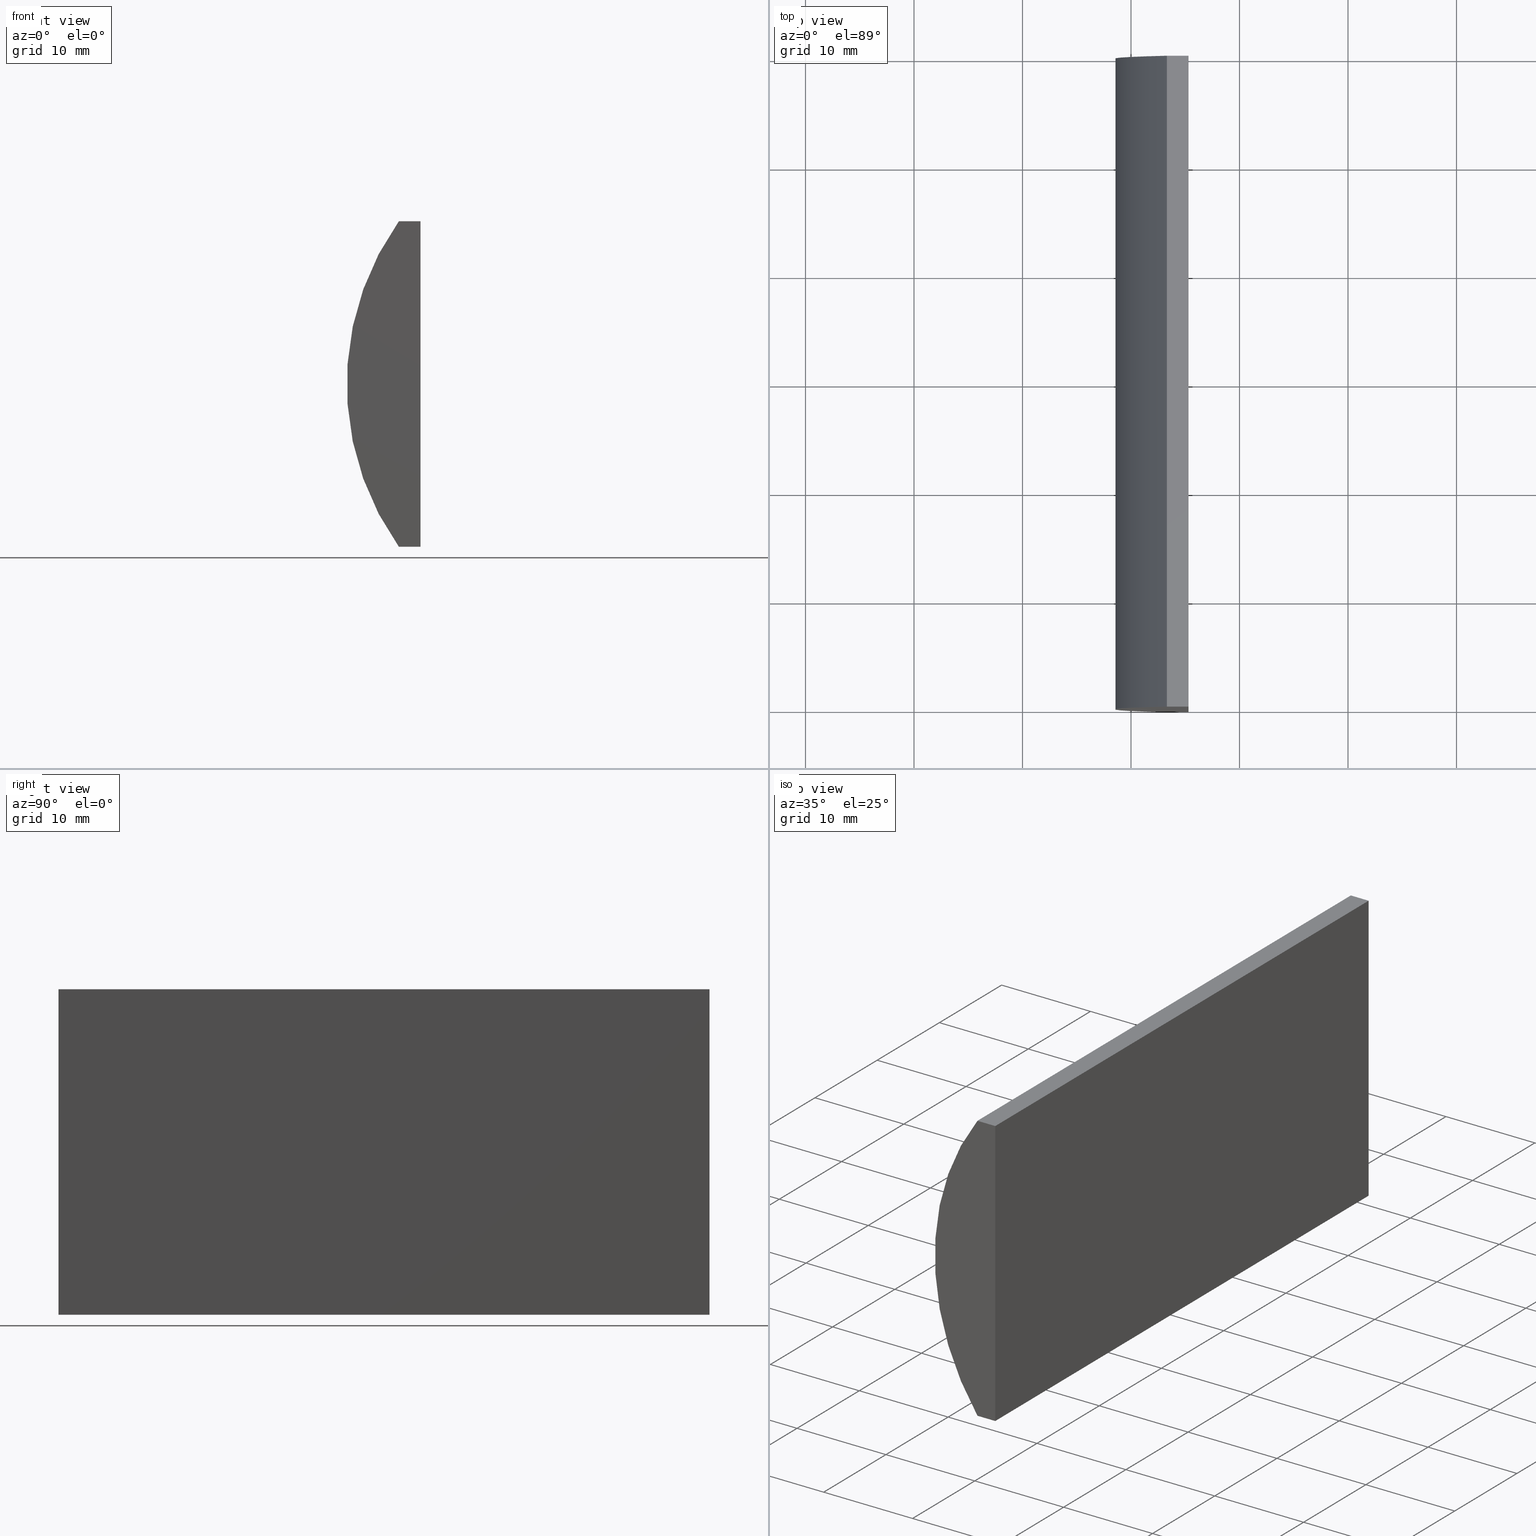
[diagram: canonical four-view strip — front | top / right | iso, engineering-drawing reading convention]
A machine part, canonical four-view strip (front | top / right | iso — engineering-drawing reading convention). The complete STEP part file that produces these views, byte-faithful:
ISO-10303-21;
HEADER;
FILE_DESCRIPTION (( 'STEP AP214' ),
    '1' );
FILE_NAME ('155058.STEP',
    '2019-06-18T07:33:01',
    ( 'user' ),
    ( '΢���й�' ),
    'SwSTEP 2.0',
    'SolidWorks 2016',
    '' );
FILE_SCHEMA (( 'AUTOMOTIVE_DESIGN' ));
ENDSEC;

DATA;
#1 = PLANE ( 'NONE',  #10 ) ;
#2 =( NAMED_UNIT ( * ) PLANE_ANGLE_UNIT ( ) SI_UNIT ( $, .RADIAN. ) );
#3 =( NAMED_UNIT ( * ) PLANE_ANGLE_UNIT ( ) SI_UNIT ( $, .RADIAN. ) );
#4 = ORIENTED_EDGE ( 'NONE', *, *, #66, .T. ) ;
#5 = EDGE_LOOP ( 'NONE', ( #51, #196, #179, #7 ) ) ;
#6 = DIRECTION ( 'NONE',  ( -1.000000000000000000, -0.0000000000000000000, -0.0000000000000000000 ) ) ;
#7 = ORIENTED_EDGE ( 'NONE', *, *, #157, .F. ) ;
#8 = DIRECTION ( 'NONE',  ( -0.0000000000000000000, -1.000000000000000000, -0.0000000000000000000 ) ) ;
#9 = DIRECTION ( 'NONE',  ( -0.0000000000000000000, -1.000000000000000000, -0.0000000000000000000 ) ) ;
#10 = AXIS2_PLACEMENT_3D ( 'NONE', #141, #197, #119 ) ;
#11 = FACE_OUTER_BOUND ( 'NONE', #79, .T. ) ;
#12 = UNCERTAINTY_MEASURE_WITH_UNIT (LENGTH_MEASURE( 1.000000000000000100E-005 ), #25, 'distance_accuracy_value', 'NONE');
#13 = DIRECTION ( 'NONE',  ( -2.891205793294678800E-016, -0.0000000000000000000, -1.000000000000000000 ) ) ;
#14 = EDGE_CURVE ( 'NONE', #170, #146, #80, .T. ) ;
#15 = DIRECTION ( 'NONE',  ( -2.891205793294678800E-016, -0.0000000000000000000, -1.000000000000000000 ) ) ;
#16 = LINE ( 'NONE', #46, #62 ) ;
#17 = AXIS2_PLACEMENT_3D ( 'NONE', #182, #78, #48 ) ;
#18 = MECHANICAL_DESIGN_GEOMETRIC_PRESENTATION_REPRESENTATION (  '', ( #166 ), #115 ) ;
#19 = ORIENTED_EDGE ( 'NONE', *, *, #169, .T. ) ;
#20 = EDGE_CURVE ( 'NONE', #170, #65, #34, .T. ) ;
#21 = DIRECTION ( 'NONE',  ( -1.000000000000000000, -0.0000000000000000000, -0.0000000000000000000 ) ) ;
#22 = VECTOR ( 'NONE', #6, 1000.000000000000000 ) ;
#23 = CARTESIAN_POINT ( 'NONE',  ( 4.355204334851265500, 60.00000000000000000, 4.286263797015675000E-017 ) ) ;
#24 = PRESENTATION_LAYER_ASSIGNMENT (  '', '', ( #166 ) ) ;
#25 =( LENGTH_UNIT ( ) NAMED_UNIT ( * ) SI_UNIT ( .MILLI., .METRE. ) );
#26 = FACE_OUTER_BOUND ( 'NONE', #5, .T. ) ;
#27 = CARTESIAN_POINT ( 'NONE',  ( -14.69479566514873300, 60.00000000000000000, 15.00000000000000000 ) ) ;
#28 = ORIENTED_EDGE ( 'NONE', *, *, #169, .F. ) ;
#29 = DIRECTION ( 'NONE',  ( 0.0000000000000000000, 0.0000000000000000000, -1.000000000000000000 ) ) ;
#30 = DIRECTION ( 'NONE',  ( 1.000000000000000000, 0.0000000000000000000, 0.0000000000000000000 ) ) ;
#31 = LINE ( 'NONE', #129, #64 ) ;
#32 = PRODUCT_DEFINITION_CONTEXT ( 'detailed design', #63, 'design' ) ;
#33 = UNCERTAINTY_MEASURE_WITH_UNIT (LENGTH_MEASURE( 1.000000000000000100E-005 ), #155, 'distance_accuracy_value', 'NONE');
#34 = CIRCLE ( 'NONE', #148, 25.84999999999999800 ) ;
#35 = DIRECTION ( 'NONE',  ( 0.0000000000000000000, 0.0000000000000000000, -1.000000000000000000 ) ) ;
#36 = ORIENTED_EDGE ( 'NONE', *, *, #106, .T. ) ;
#37 = PRODUCT ( '155058', '155058', '', ( #87 ) ) ;
#38 = CARTESIAN_POINT ( 'NONE',  ( -14.69479566514874200, 60.00000000000000000, -15.00000000000000000 ) ) ;
#39 = DIRECTION ( 'NONE',  ( 1.000000000000000000, 0.0000000000000000000, -0.0000000000000000000 ) ) ;
#40 = CARTESIAN_POINT ( 'NONE',  ( -16.69764582848766200, 60.00000000000000000, -15.00000000000000000 ) ) ;
#41 = VECTOR ( 'NONE', #13, 1000.000000000000000 ) ;
#42 = CARTESIAN_POINT ( 'NONE',  ( -14.69479566514874200, 60.00000000000000000, -15.00000000000000000 ) ) ;
#43 = ADVANCED_BREP_SHAPE_REPRESENTATION ( '155058', ( #198, #85 ), #204 ) ;
#44 = ORIENTED_EDGE ( 'NONE', *, *, #164, .T. ) ;
#45 = LINE ( 'NONE', #42, #175 ) ;
#46 = CARTESIAN_POINT ( 'NONE',  ( -14.69479566514873300, 60.00000000000000000, 15.00000000000000000 ) ) ;
#47 = EDGE_CURVE ( 'NONE', #145, #95, #45, .T. ) ;
#48 = DIRECTION ( 'NONE',  ( 0.0000000000000000000, -0.0000000000000000000, 1.000000000000000000 ) ) ;
#49 = EDGE_LOOP ( 'NONE', ( #4, #104, #28, #56 ) ) ;
#50 = AXIS2_PLACEMENT_3D ( 'NONE', #128, #35, #109 ) ;
#51 = ORIENTED_EDGE ( 'NONE', *, *, #116, .F. ) ;
#52 = ORIENTED_EDGE ( 'NONE', *, *, #174, .T. ) ;
#53 = PRESENTATION_STYLE_ASSIGNMENT (( #75 ) ) ;
#54 = DIRECTION ( 'NONE',  ( 0.0000000000000000000, 1.000000000000000000, 0.0000000000000000000 ) ) ;
#55 =( NAMED_UNIT ( * ) SI_UNIT ( $, .STERADIAN. ) SOLID_ANGLE_UNIT ( ) );
#56 = ORIENTED_EDGE ( 'NONE', *, *, #47, .T. ) ;
#57 = LINE ( 'NONE', #105, #22 ) ;
#58 = SURFACE_STYLE_FILL_AREA ( #152 ) ;
#59 = LINE ( 'NONE', #194, #147 ) ;
#60 = AXIS2_PLACEMENT_3D ( 'NONE', #23, #9, #29 ) ;
#61 = DIRECTION ( 'NONE',  ( 0.0000000000000000000, 0.0000000000000000000, 1.000000000000000000 ) ) ;
#62 = VECTOR ( 'NONE', #123, 1000.000000000000000 ) ;
#63 = APPLICATION_CONTEXT ( 'automotive_design' ) ;
#64 = VECTOR ( 'NONE', #30, 1000.000000000000000 ) ;
#65 = VERTEX_POINT ( 'NONE', #73 ) ;
#66 = EDGE_CURVE ( 'NONE', #95, #146, #57, .T. ) ;
#67 = APPLICATION_PROTOCOL_DEFINITION ( 'draft international standard', 'automotive_design', 1998, #63 ) ;
#68 = ORIENTED_EDGE ( 'NONE', *, *, #47, .F. ) ;
#69 = DIRECTION ( 'NONE',  ( 0.0000000000000000000, 1.000000000000000000, 0.0000000000000000000 ) ) ;
#70 = DIRECTION ( 'NONE',  ( -0.0000000000000000000, -1.000000000000000000, -0.0000000000000000000 ) ) ;
#71 = PRODUCT_DEFINITION_SHAPE ( 'NONE', 'NONE',  #91 ) ;
#72 = FACE_OUTER_BOUND ( 'NONE', #176, .T. ) ;
#73 = CARTESIAN_POINT ( 'NONE',  ( -16.69764582848766200, 60.00000000000000000, 15.00000000000000000 ) ) ;
#74 = FILL_AREA_STYLE_COLOUR ( '', #171 ) ;
#75 = SURFACE_STYLE_USAGE ( .BOTH. , #135 ) ;
#76 = CARTESIAN_POINT ( 'NONE',  ( 4.355204334851265500, 0.0000000000000000000, 4.286263797015675000E-017 ) ) ;
#77 = CARTESIAN_POINT ( 'NONE',  ( 4.355204334851265500, 60.00000000000000000, 4.286263797015675000E-017 ) ) ;
#78 = DIRECTION ( 'NONE',  ( 0.0000000000000000000, 1.000000000000000000, 0.0000000000000000000 ) ) ;
#79 = EDGE_LOOP ( 'NONE', ( #89, #202, #161, #133 ) ) ;
#80 = LINE ( 'NONE', #40, #120 ) ;
#81 = FACE_OUTER_BOUND ( 'NONE', #49, .T. ) ;
#82 = MECHANICAL_DESIGN_GEOMETRIC_PRESENTATION_REPRESENTATION (  '', ( #130 ), #200 ) ;
#83 = DIRECTION ( 'NONE',  ( 1.000000000000000000, 0.0000000000000000000, 0.0000000000000000000 ) ) ;
#84 = CARTESIAN_POINT ( 'NONE',  ( -14.69479566514874200, 0.0000000000000000000, -15.00000000000000000 ) ) ;
#85 = AXIS2_PLACEMENT_3D ( 'NONE', #127, #90, #181 ) ;
#86 = CARTESIAN_POINT ( 'NONE',  ( -16.69764582848766200, 0.0000000000000000000, -15.00000000000000000 ) ) ;
#87 = PRODUCT_CONTEXT ( 'NONE', #93, 'mechanical' ) ;
#88 = PLANE ( 'NONE',  #189 ) ;
#89 = ORIENTED_EDGE ( 'NONE', *, *, #116, .T. ) ;
#90 = DIRECTION ( 'NONE',  ( 0.0000000000000000000, 0.0000000000000000000, 1.000000000000000000 ) ) ;
#91 = PRODUCT_DEFINITION ( 'δ֪', '', #108, #32 ) ;
#92 = ORIENTED_EDGE ( 'NONE', *, *, #174, .F. ) ;
#93 = APPLICATION_CONTEXT ( 'automotive_design' ) ;
#94 = EDGE_LOOP ( 'NONE', ( #44, #68, #92, #110 ) ) ;
#95 = VERTEX_POINT ( 'NONE', #84 ) ;
#96 = SHAPE_DEFINITION_REPRESENTATION ( #71, #43 ) ;
#97 = VECTOR ( 'NONE', #83, 1000.000000000000000 ) ;
#98 = EDGE_CURVE ( 'NONE', #65, #168, #124, .T. ) ;
#99 = VECTOR ( 'NONE', #15, 1000.000000000000000 ) ;
#100 = CARTESIAN_POINT ( 'NONE',  ( -16.69764582848766200, 60.00000000000000000, 15.00000000000000000 ) ) ;
#101 = CLOSED_SHELL ( 'NONE', ( #114, #190, #178, #191, #107, #144 ) ) ;
#102 = SURFACE_STYLE_USAGE ( .BOTH. , #162 ) ;
#103 = APPLICATION_PROTOCOL_DEFINITION ( 'draft international standard', 'automotive_design', 1998, #93 ) ;
#104 = ORIENTED_EDGE ( 'NONE', *, *, #14, .F. ) ;
#105 = CARTESIAN_POINT ( 'NONE',  ( -16.69764582848766200, 0.0000000000000000000, -15.00000000000000000 ) ) ;
#106 = EDGE_CURVE ( 'NONE', #65, #199, #185, .T. ) ;
#107 = ADVANCED_FACE ( 'NONE', ( #180 ), #134, .T. ) ;
#108 = PRODUCT_DEFINITION_FORMATION_WITH_SPECIFIED_SOURCE ( '�κ�', '', #37, .NOT_KNOWN. ) ;
#109 = DIRECTION ( 'NONE',  ( -1.000000000000000000, 0.0000000000000000000, -0.0000000000000000000 ) ) ;
#110 = ORIENTED_EDGE ( 'NONE', *, *, #142, .T. ) ;
#111 = PRESENTATION_STYLE_ASSIGNMENT (( #102 ) ) ;
#112 = LINE ( 'NONE', #160, #41 ) ;
#113 = ORIENTED_EDGE ( 'NONE', *, *, #157, .T. ) ;
#114 = ADVANCED_FACE ( 'NONE', ( #11 ), #149, .T. ) ;
#115 =( GEOMETRIC_REPRESENTATION_CONTEXT ( 3 ) GLOBAL_UNCERTAINTY_ASSIGNED_CONTEXT ( ( #151 ) ) GLOBAL_UNIT_ASSIGNED_CONTEXT ( ( #159, #2, #55 ) ) REPRESENTATION_CONTEXT ( 'NONE', 'WORKASPACE' ) );
#116 = EDGE_CURVE ( 'NONE', #146, #168, #143, .T. ) ;
#117 = FILL_AREA_STYLE_COLOUR ( '', #139 ) ;
#118 = AXIS2_PLACEMENT_3D ( 'NONE', #76, #69, #192 ) ;
#119 = DIRECTION ( 'NONE',  ( 2.891205793294678800E-016, 0.0000000000000000000, 1.000000000000000000 ) ) ;
#120 = VECTOR ( 'NONE', #187, 1000.000000000000000 ) ;
#121 = PLANE ( 'NONE',  #17 ) ;
#122 = FILL_AREA_STYLE ('',( #74 ) ) ;
#123 = DIRECTION ( 'NONE',  ( -0.0000000000000000000, -1.000000000000000000, -0.0000000000000000000 ) ) ;
#124 = LINE ( 'NONE', #158, #203 ) ;
#125 = PLANE ( 'NONE',  #50 ) ;
#126 = PRODUCT_RELATED_PRODUCT_CATEGORY ( 'part', '', ( #37 ) ) ;
#127 = CARTESIAN_POINT ( 'NONE',  ( 0.0000000000000000000, 0.0000000000000000000, 0.0000000000000000000 ) ) ;
#128 = CARTESIAN_POINT ( 'NONE',  ( -16.69764582848766200, 60.00000000000000000, 15.00000000000000000 ) ) ;
#129 = CARTESIAN_POINT ( 'NONE',  ( -16.69764582848766200, 0.0000000000000000000, 15.00000000000000000 ) ) ;
#130 = STYLED_ITEM ( 'NONE', ( #53 ), #198 ) ;
#131 = ORIENTED_EDGE ( 'NONE', *, *, #20, .T. ) ;
#132 = DIRECTION ( 'NONE',  ( 0.0000000000000000000, 0.0000000000000000000, 1.000000000000000000 ) ) ;
#133 = ORIENTED_EDGE ( 'NONE', *, *, #14, .T. ) ;
#134 = PLANE ( 'NONE',  #177 ) ;
#135 = SURFACE_SIDE_STYLE ('',( #172 ) ) ;
#136 = PRESENTATION_LAYER_ASSIGNMENT (  '', '', ( #130 ) ) ;
#137 = CARTESIAN_POINT ( 'NONE',  ( -16.69764582848766200, 60.00000000000000000, -15.00000000000000000 ) ) ;
#138 = ORIENTED_EDGE ( 'NONE', *, *, #106, .F. ) ;
#139 = COLOUR_RGB ( '',1.000000000000000000, 1.000000000000000000, 1.000000000000000000 ) ;
#140 = EDGE_LOOP ( 'NONE', ( #131, #36, #52, #19 ) ) ;
#141 = CARTESIAN_POINT ( 'NONE',  ( -14.69479566514874200, 60.00000000000000000, -15.00000000000000000 ) ) ;
#142 = EDGE_CURVE ( 'NONE', #199, #186, #16, .T. ) ;
#143 = CIRCLE ( 'NONE', #118, 25.84999999999999800 ) ;
#144 = ADVANCED_FACE ( 'NONE', ( #26 ), #121, .F. ) ;
#145 = VERTEX_POINT ( 'NONE', #153 ) ;
#146 = VERTEX_POINT ( 'NONE', #86 ) ;
#147 = VECTOR ( 'NONE', #21, 1000.000000000000000 ) ;
#148 = AXIS2_PLACEMENT_3D ( 'NONE', #154, #167, #132 ) ;
#149 = CYLINDRICAL_SURFACE ( 'NONE', #60, 25.84999999999999800 ) ;
#150 = ORIENTED_EDGE ( 'NONE', *, *, #142, .F. ) ;
#151 = UNCERTAINTY_MEASURE_WITH_UNIT (LENGTH_MEASURE( 1.000000000000000100E-005 ), #159, 'distance_accuracy_value', 'NONE');
#152 = FILL_AREA_STYLE ('',( #117 ) ) ;
#153 = CARTESIAN_POINT ( 'NONE',  ( -14.69479566514874200, 60.00000000000000000, -15.00000000000000000 ) ) ;
#154 = CARTESIAN_POINT ( 'NONE',  ( 4.355204334851265500, 60.00000000000000000, 4.286263797015675000E-017 ) ) ;
#155 =( LENGTH_UNIT ( ) NAMED_UNIT ( * ) SI_UNIT ( .MILLI., .METRE. ) );
#156 = FACE_OUTER_BOUND ( 'NONE', #94, .T. ) ;
#157 = EDGE_CURVE ( 'NONE', #168, #186, #31, .T. ) ;
#158 = CARTESIAN_POINT ( 'NONE',  ( -16.69764582848766200, 60.00000000000000000, 15.00000000000000000 ) ) ;
#159 =( LENGTH_UNIT ( ) NAMED_UNIT ( * ) SI_UNIT ( .MILLI., .METRE. ) );
#160 = CARTESIAN_POINT ( 'NONE',  ( -14.69479566514874200, 0.0000000000000000000, -15.00000000000000000 ) ) ;
#161 = ORIENTED_EDGE ( 'NONE', *, *, #20, .F. ) ;
#162 = SURFACE_SIDE_STYLE ('',( #58 ) ) ;
#163 = CARTESIAN_POINT ( 'NONE',  ( -16.69764582848766200, 0.0000000000000000000, 15.00000000000000000 ) ) ;
#164 = EDGE_CURVE ( 'NONE', #186, #95, #112, .T. ) ;
#165 = ORIENTED_EDGE ( 'NONE', *, *, #98, .T. ) ;
#166 = STYLED_ITEM ( 'NONE', ( #111 ), #43 ) ;
#167 = DIRECTION ( 'NONE',  ( 0.0000000000000000000, 1.000000000000000000, 0.0000000000000000000 ) ) ;
#168 = VERTEX_POINT ( 'NONE', #163 ) ;
#169 = EDGE_CURVE ( 'NONE', #145, #170, #59, .T. ) ;
#170 = VERTEX_POINT ( 'NONE', #137 ) ;
#171 = COLOUR_RGB ( '',1.000000000000000000, 1.000000000000000000, 1.000000000000000000 ) ;
#172 = SURFACE_STYLE_FILL_AREA ( #122 ) ;
#173 =( NAMED_UNIT ( * ) SI_UNIT ( $, .STERADIAN. ) SOLID_ANGLE_UNIT ( ) );
#174 = EDGE_CURVE ( 'NONE', #199, #145, #201, .T. ) ;
#175 = VECTOR ( 'NONE', #8, 1000.000000000000000 ) ;
#176 = EDGE_LOOP ( 'NONE', ( #113, #150, #138, #165 ) ) ;
#177 = AXIS2_PLACEMENT_3D ( 'NONE', #77, #54, #195 ) ;
#178 = ADVANCED_FACE ( 'NONE', ( #156 ), #1, .F. ) ;
#179 = ORIENTED_EDGE ( 'NONE', *, *, #164, .F. ) ;
#180 = FACE_OUTER_BOUND ( 'NONE', #140, .T. ) ;
#181 = DIRECTION ( 'NONE',  ( 1.000000000000000000, 0.0000000000000000000, 0.0000000000000000000 ) ) ;
#182 = CARTESIAN_POINT ( 'NONE',  ( 4.355204334851265500, 0.0000000000000000000, 4.286263797015675000E-017 ) ) ;
#183 =( NAMED_UNIT ( * ) PLANE_ANGLE_UNIT ( ) SI_UNIT ( $, .RADIAN. ) );
#184 = CARTESIAN_POINT ( 'NONE',  ( -14.69479566514873300, 0.0000000000000000000, 15.00000000000000000 ) ) ;
#185 = LINE ( 'NONE', #100, #97 ) ;
#186 = VERTEX_POINT ( 'NONE', #184 ) ;
#187 = DIRECTION ( 'NONE',  ( -0.0000000000000000000, -1.000000000000000000, -0.0000000000000000000 ) ) ;
#188 =( NAMED_UNIT ( * ) SI_UNIT ( $, .STERADIAN. ) SOLID_ANGLE_UNIT ( ) );
#189 = AXIS2_PLACEMENT_3D ( 'NONE', #193, #61, #39 ) ;
#190 = ADVANCED_FACE ( 'NONE', ( #72 ), #125, .F. ) ;
#191 = ADVANCED_FACE ( 'NONE', ( #81 ), #88, .F. ) ;
#192 = DIRECTION ( 'NONE',  ( 0.0000000000000000000, 0.0000000000000000000, 1.000000000000000000 ) ) ;
#193 = CARTESIAN_POINT ( 'NONE',  ( -16.69764582848766200, 60.00000000000000000, -15.00000000000000000 ) ) ;
#194 = CARTESIAN_POINT ( 'NONE',  ( -16.69764582848766200, 60.00000000000000000, -15.00000000000000000 ) ) ;
#195 = DIRECTION ( 'NONE',  ( 0.0000000000000000000, -0.0000000000000000000, 1.000000000000000000 ) ) ;
#196 = ORIENTED_EDGE ( 'NONE', *, *, #66, .F. ) ;
#197 = DIRECTION ( 'NONE',  ( -1.000000000000000000, 0.0000000000000000000, 2.891205793294678800E-016 ) ) ;
#198 = MANIFOLD_SOLID_BREP ( '͹̨-����1', #101 ) ;
#199 = VERTEX_POINT ( 'NONE', #27 ) ;
#200 =( GEOMETRIC_REPRESENTATION_CONTEXT ( 3 ) GLOBAL_UNCERTAINTY_ASSIGNED_CONTEXT ( ( #33 ) ) GLOBAL_UNIT_ASSIGNED_CONTEXT ( ( #155, #3, #188 ) ) REPRESENTATION_CONTEXT ( 'NONE', 'WORKASPACE' ) );
#201 = LINE ( 'NONE', #38, #99 ) ;
#202 = ORIENTED_EDGE ( 'NONE', *, *, #98, .F. ) ;
#203 = VECTOR ( 'NONE', #70, 1000.000000000000000 ) ;
#204 =( GEOMETRIC_REPRESENTATION_CONTEXT ( 3 ) GLOBAL_UNCERTAINTY_ASSIGNED_CONTEXT ( ( #12 ) ) GLOBAL_UNIT_ASSIGNED_CONTEXT ( ( #25, #183, #173 ) ) REPRESENTATION_CONTEXT ( 'NONE', 'WORKASPACE' ) );
ENDSEC;
END-ISO-10303-21;
